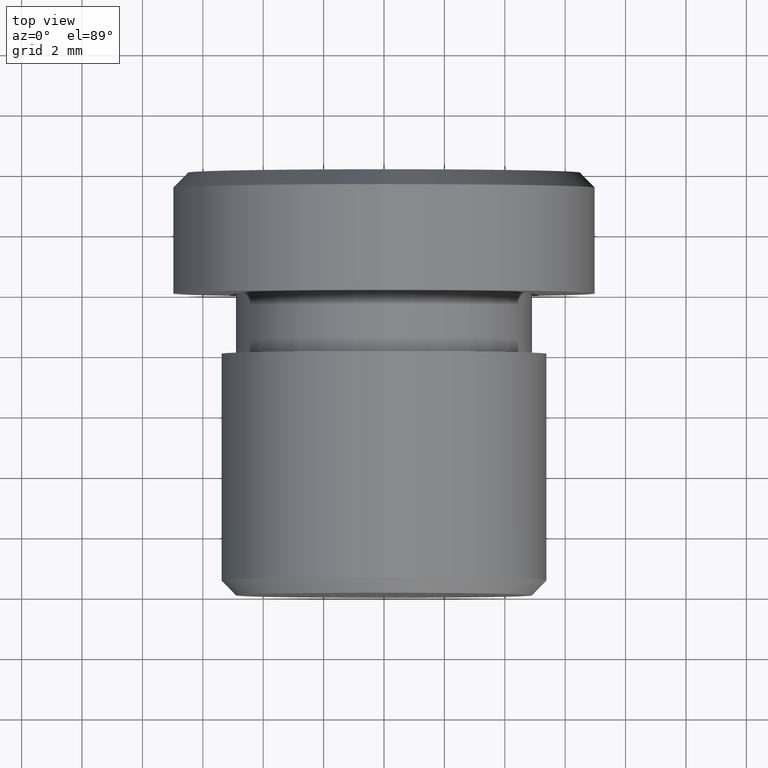
[diagram: clean part render]
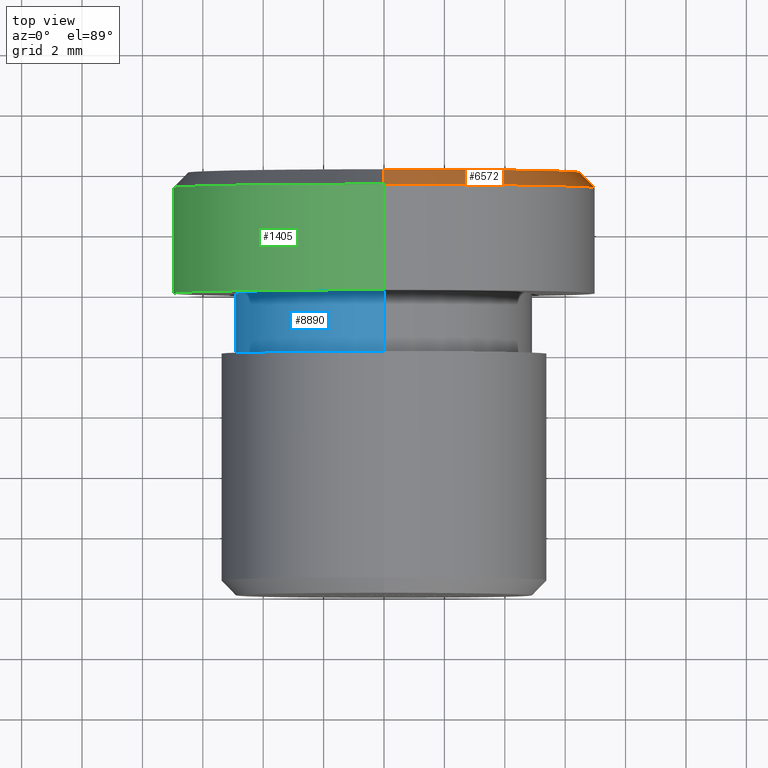
[diagram: same view with three faces highlighted in distinct colors, each labeled with its STEP entity id]
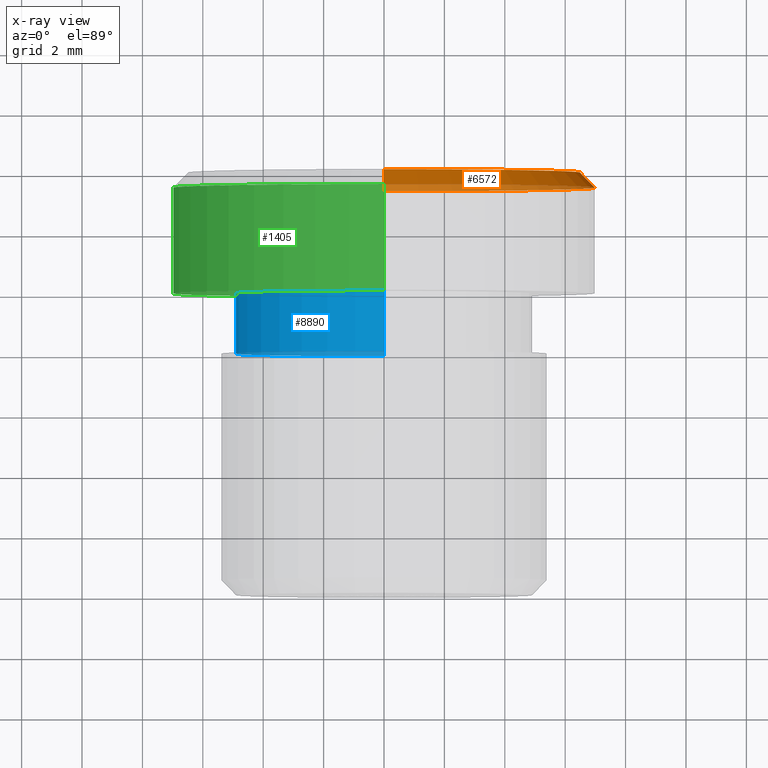
[diagram: x-ray of the same camera — body ghosted, the three highlighted faces saturated]
A machine part, top view with three faces highlighted in distinct colors.
The next image is the same camera in x-ray (body ghosted, the three faces saturated) — at least one of them is partly hidden behind the body in this view.
Their STEP definitions:

[orange] entity #6572 — the highlighted conical surface has half-angle 45 deg.
#461 = CARTESIAN_POINT ( 'NONE',  ( 8.266365894244631400E-016, 14.00000000000000000, 6.499999999999995600 ) ) ;
#610 = CARTESIAN_POINT ( 'NONE',  ( 0.0000000000000000000, 13.49999999999999500, 0.0000000000000000000 ) ) ;
#1102 = DIRECTION ( 'NONE',  ( 0.0000000000000000000, -0.7071067811865474600, -0.7071067811865474600 ) ) ;
#1392 = CARTESIAN_POINT ( 'NONE',  ( 8.572527594031474200E-016, 13.49999999999999500, 7.000000000000000900 ) ) ;
#1723 = DIRECTION ( 'NONE',  ( -0.0000000000000000000, -1.000000000000000000, -0.0000000000000000000 ) ) ;
#2565 = EDGE_CURVE ( 'NONE', #13867, #10281, #8398, .T. ) ;
#2611 = DIRECTION ( 'NONE',  ( 0.0000000000000000000, 0.0000000000000000000, 1.000000000000000000 ) ) ;
#3175 = CARTESIAN_POINT ( 'NONE',  ( 0.0000000000000000000, 13.49999999999999500, -7.000000000000000900 ) ) ;
#3290 = AXIS2_PLACEMENT_3D ( 'NONE', #9379, #12748, #9516 ) ;
#3402 = AXIS2_PLACEMENT_3D ( 'NONE', #610, #9339, #2611 ) ;
#3665 = ORIENTED_EDGE ( 'NONE', *, *, #11947, .T. ) ;
#5117 = VECTOR ( 'NONE', #1102, 1000.000000000000100 ) ;
#5357 = VECTOR ( 'NONE', #12605, 1000.000000000000100 ) ;
#5620 = CARTESIAN_POINT ( 'NONE',  ( 8.572527594031474200E-016, 13.49999999999999500, 7.000000000000000900 ) ) ;
#6572 = ADVANCED_FACE ( 'NONE', ( #9363 ), #10924, .T. ) ;
#7232 = CIRCLE ( 'NONE', #3290, 6.499999999999995600 ) ;
#7239 = CARTESIAN_POINT ( 'NONE',  ( 0.0000000000000000000, 13.49999999999999500, 0.0000000000000000000 ) ) ;
#8185 = EDGE_LOOP ( 'NONE', ( #11910, #3665, #14116, #13433 ) ) ;
#8286 = LINE ( 'NONE', #1392, #5357 ) ;
#8398 = LINE ( 'NONE', #10077, #5117 ) ;
#9339 = DIRECTION ( 'NONE',  ( -0.0000000000000000000, -1.000000000000000000, -0.0000000000000000000 ) ) ;
#9363 = FACE_OUTER_BOUND ( 'NONE', #8185, .T. ) ;
#9379 = CARTESIAN_POINT ( 'NONE',  ( 0.0000000000000000000, 14.00000000000000000, 0.0000000000000000000 ) ) ;
#9516 = DIRECTION ( 'NONE',  ( 0.0000000000000000000, 0.0000000000000000000, 1.000000000000000000 ) ) ;
#10077 = CARTESIAN_POINT ( 'NONE',  ( 0.0000000000000000000, 13.49999999999999500, -7.000000000000000900 ) ) ;
#10281 = VERTEX_POINT ( 'NONE', #3175 ) ;
#10530 = EDGE_CURVE ( 'NONE', #11149, #13867, #7232, .T. ) ;
#10924 = CONICAL_SURFACE ( 'NONE', #11492, 7.000000000000000900, 0.7853981633974482800 ) ;
#11149 = VERTEX_POINT ( 'NONE', #461 ) ;
#11492 = AXIS2_PLACEMENT_3D ( 'NONE', #7239, #1723, #11647 ) ;
#11647 = DIRECTION ( 'NONE',  ( 0.0000000000000000000, 0.0000000000000000000, -1.000000000000000000 ) ) ;
#11792 = CARTESIAN_POINT ( 'NONE',  ( 0.0000000000000000000, 14.00000000000000000, -6.499999999999995600 ) ) ;
#11910 = ORIENTED_EDGE ( 'NONE', *, *, #10530, .F. ) ;
#11947 = EDGE_CURVE ( 'NONE', #11149, #13067, #8286, .T. ) ;
#12605 = DIRECTION ( 'NONE',  ( 8.659560562354932900E-017, -0.7071067811865474600, 0.7071067811865474600 ) ) ;
#12748 = DIRECTION ( 'NONE',  ( 0.0000000000000000000, 1.000000000000000000, 0.0000000000000000000 ) ) ;
#13067 = VERTEX_POINT ( 'NONE', #5620 ) ;
#13411 = EDGE_CURVE ( 'NONE', #10281, #13067, #13765, .T. ) ;
#13433 = ORIENTED_EDGE ( 'NONE', *, *, #2565, .F. ) ;
#13765 = CIRCLE ( 'NONE', #3402, 7.000000000000000900 ) ;
#13867 = VERTEX_POINT ( 'NONE', #11792 ) ;
#14116 = ORIENTED_EDGE ( 'NONE', *, *, #13411, .F. ) ;

[blue] entity #8890 — the highlighted cylindrical surface (partial cylindrical patch) has radius 4.9 mm, axis along (-0, 1, -0).
#11 = AXIS2_PLACEMENT_3D ( 'NONE', #2691, #544, #6001 ) ;
#544 = DIRECTION ( 'NONE',  ( -0.0000000000000000000, 1.000000000000000000, -0.0000000000000000000 ) ) ;
#828 = EDGE_CURVE ( 'NONE', #1406, #847, #6188, .T. ) ;
#847 = VERTEX_POINT ( 'NONE', #2561 ) ;
#1115 = CARTESIAN_POINT ( 'NONE',  ( 0.0000000000000000000, 10.00000000000000000, 4.899999999999999500 ) ) ;
#1406 = VERTEX_POINT ( 'NONE', #3209 ) ;
#1874 = VERTEX_POINT ( 'NONE', #13081 ) ;
#2203 = DIRECTION ( 'NONE',  ( -0.0000000000000000000, 1.000000000000000000, -0.0000000000000000000 ) ) ;
#2418 = CYLINDRICAL_SURFACE ( 'NONE', #11, 4.899999999999999500 ) ;
#2561 = CARTESIAN_POINT ( 'NONE',  ( 6.000769315822030700E-016, 10.00000000000000000, -4.899999999999999500 ) ) ;
#2625 = DIRECTION ( 'NONE',  ( -0.0000000000000000000, 1.000000000000000000, -0.0000000000000000000 ) ) ;
#2651 = DIRECTION ( 'NONE',  ( -0.0000000000000000000, 1.000000000000000000, -0.0000000000000000000 ) ) ;
#2691 = CARTESIAN_POINT ( 'NONE',  ( 0.0000000000000000000, 10.00000000000000000, 0.0000000000000000000 ) ) ;
#2752 = FACE_OUTER_BOUND ( 'NONE', #9517, .T. ) ;
#3209 = CARTESIAN_POINT ( 'NONE',  ( 6.000769315822030700E-016, 8.000000000000000000, -4.899999999999999500 ) ) ;
#3510 = ORIENTED_EDGE ( 'NONE', *, *, #7641, .F. ) ;
#3923 = AXIS2_PLACEMENT_3D ( 'NONE', #13368, #2203, #12176 ) ;
#4027 = VECTOR ( 'NONE', #10559, 1000.000000000000000 ) ;
#4650 = CARTESIAN_POINT ( 'NONE',  ( 6.000769315822030700E-016, 10.00000000000000000, -4.899999999999999500 ) ) ;
#5841 = EDGE_CURVE ( 'NONE', #1874, #5971, #11108, .T. ) ;
#5898 = CARTESIAN_POINT ( 'NONE',  ( 0.0000000000000000000, 8.000000000000000000, 0.0000000000000000000 ) ) ;
#5971 = VERTEX_POINT ( 'NONE', #1115 ) ;
#6001 = DIRECTION ( 'NONE',  ( 0.0000000000000000000, 0.0000000000000000000, 1.000000000000000000 ) ) ;
#6082 = CARTESIAN_POINT ( 'NONE',  ( 0.0000000000000000000, 10.00000000000000000, 4.899999999999999500 ) ) ;
#6188 = LINE ( 'NONE', #4650, #11362 ) ;
#6898 = ORIENTED_EDGE ( 'NONE', *, *, #5841, .T. ) ;
#7100 = ORIENTED_EDGE ( 'NONE', *, *, #828, .F. ) ;
#7641 = EDGE_CURVE ( 'NONE', #847, #5971, #14336, .T. ) ;
#7881 = ORIENTED_EDGE ( 'NONE', *, *, #7965, .T. ) ;
#7965 = EDGE_CURVE ( 'NONE', #1406, #1874, #12782, .T. ) ;
#8066 = DIRECTION ( 'NONE',  ( 0.0000000000000000000, 0.0000000000000000000, 1.000000000000000000 ) ) ;
#8890 = ADVANCED_FACE ( 'NONE', ( #2752 ), #2418, .T. ) ;
#9517 = EDGE_LOOP ( 'NONE', ( #7100, #7881, #6898, #3510 ) ) ;
#10028 = AXIS2_PLACEMENT_3D ( 'NONE', #5898, #2625, #8066 ) ;
#10559 = DIRECTION ( 'NONE',  ( -0.0000000000000000000, 1.000000000000000000, -0.0000000000000000000 ) ) ;
#11108 = LINE ( 'NONE', #6082, #4027 ) ;
#11362 = VECTOR ( 'NONE', #2651, 1000.000000000000000 ) ;
#12176 = DIRECTION ( 'NONE',  ( 0.0000000000000000000, 0.0000000000000000000, 1.000000000000000000 ) ) ;
#12782 = CIRCLE ( 'NONE', #10028, 4.899999999999999500 ) ;
#13081 = CARTESIAN_POINT ( 'NONE',  ( 0.0000000000000000000, 8.000000000000000000, 4.899999999999999500 ) ) ;
#13368 = CARTESIAN_POINT ( 'NONE',  ( 0.0000000000000000000, 10.00000000000000000, 0.0000000000000000000 ) ) ;
#14336 = CIRCLE ( 'NONE', #3923, 4.899999999999999500 ) ;

[green] entity #1405 — the highlighted cylindrical surface (partial cylindrical patch) has radius 7 mm, axis along (-0, -1, -0).
#370 = ORIENTED_EDGE ( 'NONE', *, *, #1450, .T. ) ;
#383 = VECTOR ( 'NONE', #4968, 1000.000000000000000 ) ;
#1120 = FACE_OUTER_BOUND ( 'NONE', #10152, .T. ) ;
#1405 = ADVANCED_FACE ( 'NONE', ( #1120 ), #4640, .T. ) ;
#1450 = EDGE_CURVE ( 'NONE', #10281, #11961, #13248, .T. ) ;
#1608 = ORIENTED_EDGE ( 'NONE', *, *, #11853, .T. ) ;
#2026 = CARTESIAN_POINT ( 'NONE',  ( 0.0000000000000000000, 0.0000000000000000000, 0.0000000000000000000 ) ) ;
#2123 = DIRECTION ( 'NONE',  ( -0.0000000000000000000, -1.000000000000000000, -0.0000000000000000000 ) ) ;
#3175 = CARTESIAN_POINT ( 'NONE',  ( 0.0000000000000000000, 13.49999999999999500, -7.000000000000000900 ) ) ;
#3345 = EDGE_CURVE ( 'NONE', #13067, #9234, #13870, .T. ) ;
#3757 = VECTOR ( 'NONE', #2123, 1000.000000000000000 ) ;
#4640 = CYLINDRICAL_SURFACE ( 'NONE', #5171, 7.000000000000000900 ) ;
#4968 = DIRECTION ( 'NONE',  ( -0.0000000000000000000, -1.000000000000000000, -0.0000000000000000000 ) ) ;
#5171 = AXIS2_PLACEMENT_3D ( 'NONE', #2026, #13098, #9821 ) ;
#5325 = CARTESIAN_POINT ( 'NONE',  ( 0.0000000000000000000, 13.49999999999999500, 0.0000000000000000000 ) ) ;
#5620 = CARTESIAN_POINT ( 'NONE',  ( 8.572527594031474200E-016, 13.49999999999999500, 7.000000000000000900 ) ) ;
#5659 = DIRECTION ( 'NONE',  ( 0.0000000000000000000, 0.0000000000000000000, -1.000000000000000000 ) ) ;
#5903 = EDGE_CURVE ( 'NONE', #9234, #11961, #6955, .T. ) ;
#5945 = AXIS2_PLACEMENT_3D ( 'NONE', #11053, #12125, #5659 ) ;
#6154 = AXIS2_PLACEMENT_3D ( 'NONE', #5325, #6433, #6381 ) ;
#6381 = DIRECTION ( 'NONE',  ( 0.0000000000000000000, 0.0000000000000000000, 1.000000000000000000 ) ) ;
#6433 = DIRECTION ( 'NONE',  ( -0.0000000000000000000, -1.000000000000000000, -0.0000000000000000000 ) ) ;
#6689 = ORIENTED_EDGE ( 'NONE', *, *, #5903, .F. ) ;
#6955 = CIRCLE ( 'NONE', #5945, 7.000000000000000000 ) ;
#9234 = VERTEX_POINT ( 'NONE', #11727 ) ;
#9821 = DIRECTION ( 'NONE',  ( 0.0000000000000000000, 0.0000000000000000000, -1.000000000000000000 ) ) ;
#10152 = EDGE_LOOP ( 'NONE', ( #12548, #1608, #370, #6689 ) ) ;
#10281 = VERTEX_POINT ( 'NONE', #3175 ) ;
#10288 = CARTESIAN_POINT ( 'NONE',  ( 0.0000000000000000000, 10.00000000000000200, -7.000000000000000000 ) ) ;
#11053 = CARTESIAN_POINT ( 'NONE',  ( 0.0000000000000000000, 10.00000000000000200, 0.0000000000000000000 ) ) ;
#11727 = CARTESIAN_POINT ( 'NONE',  ( 8.572527594031473200E-016, 10.00000000000000200, 7.000000000000000000 ) ) ;
#11853 = EDGE_CURVE ( 'NONE', #13067, #10281, #12588, .T. ) ;
#11961 = VERTEX_POINT ( 'NONE', #10288 ) ;
#12125 = DIRECTION ( 'NONE',  ( -0.0000000000000000000, -1.000000000000000000, -0.0000000000000000000 ) ) ;
#12548 = ORIENTED_EDGE ( 'NONE', *, *, #3345, .F. ) ;
#12588 = CIRCLE ( 'NONE', #6154, 7.000000000000000900 ) ;
#13067 = VERTEX_POINT ( 'NONE', #5620 ) ;
#13098 = DIRECTION ( 'NONE',  ( -0.0000000000000000000, -1.000000000000000000, -0.0000000000000000000 ) ) ;
#13248 = LINE ( 'NONE', #14223, #3757 ) ;
#13667 = CARTESIAN_POINT ( 'NONE',  ( 8.572527594031474200E-016, 0.0000000000000000000, 7.000000000000000900 ) ) ;
#13870 = LINE ( 'NONE', #13667, #383 ) ;
#14223 = CARTESIAN_POINT ( 'NONE',  ( 0.0000000000000000000, 0.0000000000000000000, -7.000000000000000900 ) ) ;